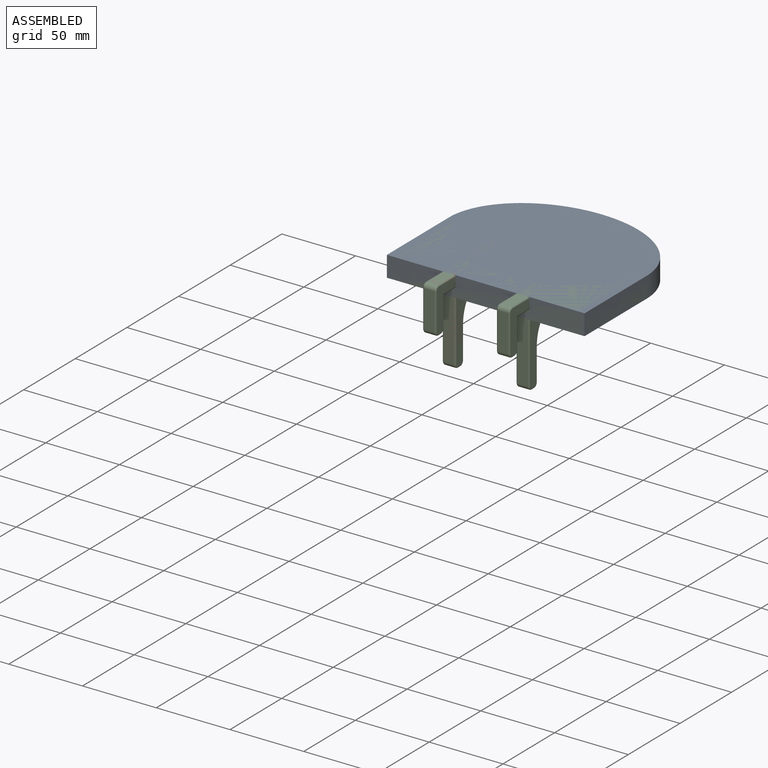
[diagram: assembled view]
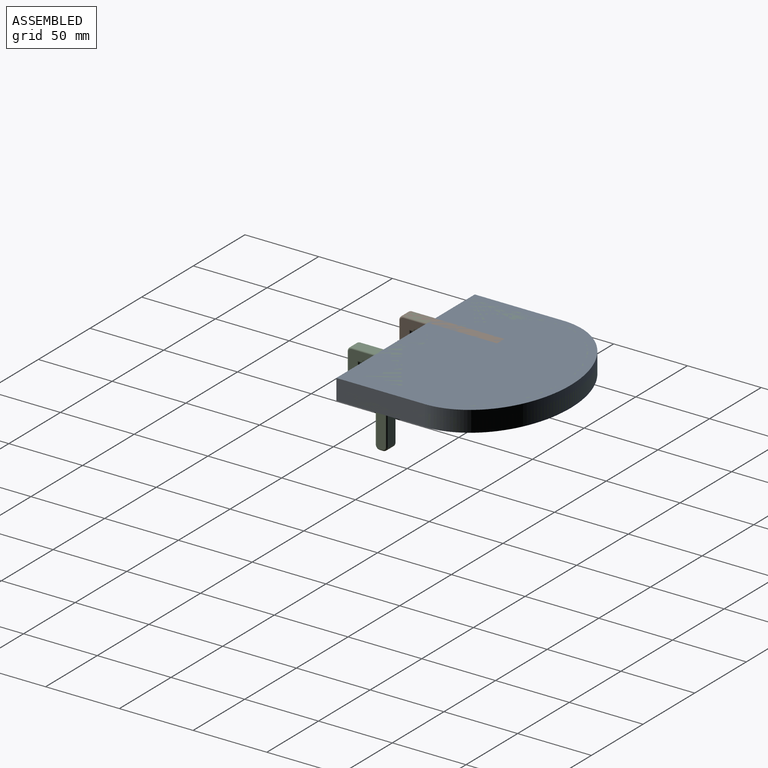
[diagram: assembled view, second angle]
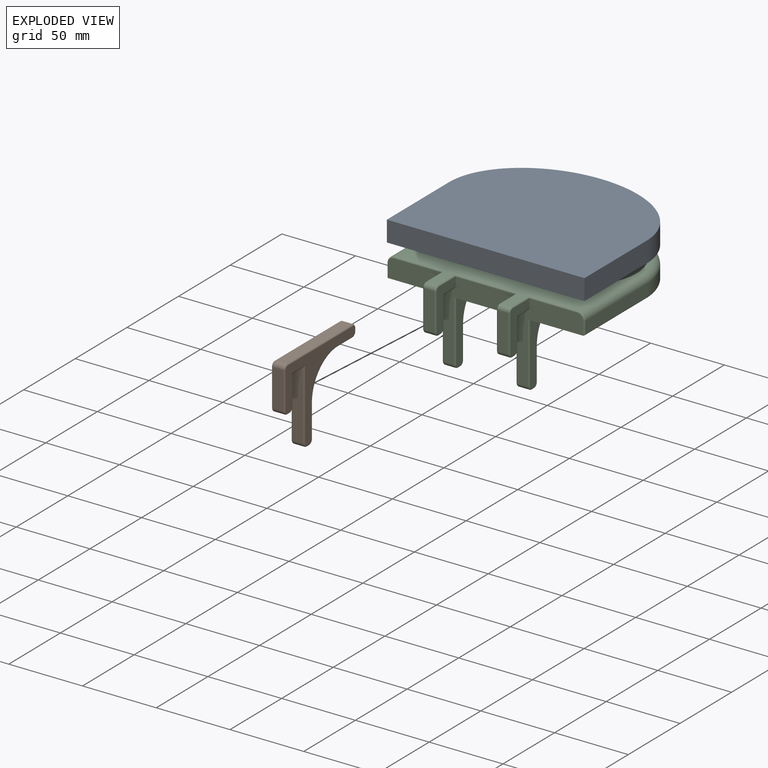
[diagram: exploded view]
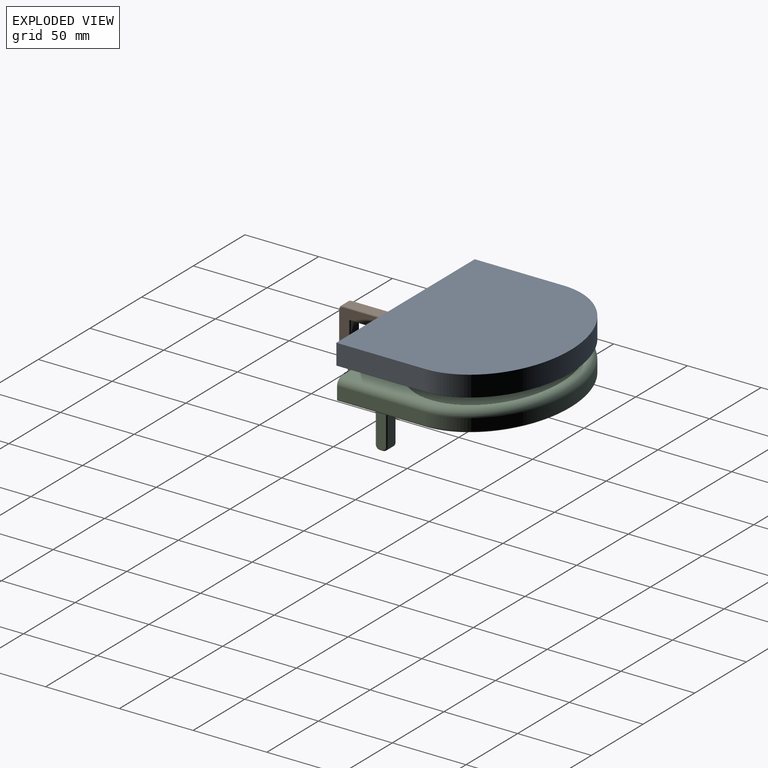
[diagram: exploded view, second angle]
FCSTD DOCUMENT  (FreeCAD 1.0R38806 (Git))
Label: PopBracket
License: All rights reserved
LicenseURL: http://en.wikipedia.org/wiki/All_rights_reserved
objects: Sketcher::SketchObject×4, PartDesign::Fillet×3, PartDesign::Body×3, PartDesign::Pad×2, PartDesign::Pocket×2, App::Link×1, App::LinkGroup×1, Part::MultiFuse×1, PartDesign::FeatureBase×1, App::Part×1, Spreadsheet::Sheet×1
note: 35 computed .brp shape members not serialized (recipe doc carries the construction recipe); baked Part::Feature solids carry a one-line shape summary decoded from their .brp

FEATURE [Sketcher::SketchObject] Sketch  label="HookSketch"
  ArcFitTolerance = 0
  AttachmentSupport = -> [YZ_Plane001]
  FullyConstrained = true
  MakeInternals = false
  MapMode = 5
  Placement = pos=(0,0,0) rot=(0.57735,0.57735,0.57735;2.0944rad)
  sketch-geometry (28):
    g0: LineSegment StartX=3 StartY=0 StartZ=0 EndX=66 EndY=0 EndZ=0
    g1: LineSegment StartX=69 StartY=-3 StartZ=0 EndX=69 EndY=-5 EndZ=0
    g2: LineSegment StartX=66 StartY=-8 StartZ=0 EndX=52 EndY=-8 EndZ=0
    g3: LineSegment StartX=27 StartY=-33 StartZ=0 EndX=27 EndY=-55 EndZ=0
    g4: LineSegment StartX=24 StartY=-58 StartZ=0 EndX=22 EndY=-58 EndZ=0
    g5: LineSegment StartX=19 StartY=-55 StartZ=0 EndX=19 EndY=-8 EndZ=0
    g6: LineSegment StartX=19 StartY=-8 StartZ=0 EndX=8 EndY=-8 EndZ=0
    g7: LineSegment StartX=8 StartY=-8 StartZ=0 EndX=8 EndY=-28 EndZ=0
    g8: LineSegment StartX=5 StartY=-31 StartZ=0 EndX=3 EndY=-31 EndZ=0
    g9: LineSegment StartX=0 StartY=-28 StartZ=0 EndX=0 EndY=-3 EndZ=0
    g10: ArcOfCircle CenterX=3 CenterY=-3 CenterZ=0 NormalX=0 NormalY=0 NormalZ=1 AngleXU=0 Radius=3 StartAngle=1.5708 EndAngle=3.14159
    g11: GeomPoint [constr] X=0 Y=0 Z=0
    g12: ArcOfCircle CenterX=66 CenterY=-3 CenterZ=0 NormalX=0 NormalY=0 NormalZ=1 AngleXU=0 Radius=3 StartAngle=0 EndAngle=1.5708
    g13: GeomPoint [constr] X=69 Y=0 Z=0
    g14: ArcOfCircle CenterX=66 CenterY=-5 CenterZ=0 NormalX=0 NormalY=0 NormalZ=1 AngleXU=0 Radius=3 StartAngle=4.71239 EndAngle=6.28319
    g15: GeomPoint [constr] X=69 Y=-8 Z=0
    g16: ArcOfCircle CenterX=52 CenterY=-33 CenterZ=0 NormalX=0 NormalY=0 NormalZ=1 AngleXU=0 Radius=25 StartAngle=1.5708 EndAngle=3.14159
    g17: GeomPoint [constr] X=27 Y=-8 Z=0
    g18: ArcOfCircle CenterX=24 CenterY=-55 CenterZ=0 NormalX=0 NormalY=0 NormalZ=1 AngleXU=0 Radius=3 StartAngle=4.71239 EndAngle=6.28319
    g19: GeomPoint [constr] X=27 Y=-58 Z=0
    g20: ArcOfCircle CenterX=22 CenterY=-55 CenterZ=0 NormalX=0 NormalY=0 NormalZ=1 AngleXU=0 Radius=3 StartAngle=3.14159 EndAngle=4.71239
    g21: GeomPoint [constr] X=19 Y=-58 Z=0
    g22: GeomPoint [constr] X=19 Y=-8 Z=0
    g23: GeomPoint [constr] X=8 Y=-8 Z=0
    g24: ArcOfCircle CenterX=5 CenterY=-28 CenterZ=0 NormalX=0 NormalY=0 NormalZ=1 AngleXU=0 Radius=3 StartAngle=4.71239 EndAngle=6.28319
    g25: GeomPoint [constr] X=8 Y=-31 Z=0
    g26: ArcOfCircle CenterX=3 CenterY=-28 CenterZ=0 NormalX=0 NormalY=0 NormalZ=1 AngleXU=0 Radius=3 StartAngle=3.14159 EndAngle=4.71239
    g27: GeomPoint [constr] X=0 Y=-31 Z=0
  constraints (64):
    c: Coincident(g-1,g11)
    c: PointOnObject(g13,g-1)
    c: Vertical(g1)
    c: Horizontal(g2)
    c: Vertical(g3)
    c: Horizontal(g4)
    c: Vertical(g5)
    c: Horizontal(g6)
    c: Vertical(g7)
    c: PointOnObject(g27,g-2)
    c: Horizontal(g8)
    c: DistanceX(g21,g19) = 8
    c: DistanceX(g27,g25) = 8
    c: DistanceY(g19,g17) = 50
    c: DistanceY(g25,g23) = 23
    c: DistanceY(g15,g13) = 8
    c: DistanceY(g27,g11) = 31
    c: PointOnObject(g11,g9)
    c: PointOnObject(g11,g0)
    c: Tangent(g9,g10) = 1.5708
    c: Tangent(g0,g10) = 1.5708
    c: PointOnObject(g13,g0)
    c: PointOnObject(g13,g1)
    c: Tangent(g0,g12) = 1.5708
    c: Tangent(g1,g12) = 1.5708
    c: PointOnObject(g15,g1)
    c: PointOnObject(g15,g2)
    c: Tangent(g1,g14) = 1.5708
    c: Tangent(g2,g14) = 1.5708
    c: PointOnObject(g17,g2)
    c: PointOnObject(g17,g3)
    c: Tangent(g2,g16) = -1.5708
    c: Tangent(g3,g16) = -1.5708
    c: PointOnObject(g19,g3)
    c: PointOnObject(g19,g4)
    c: Tangent(g3,g18) = 1.5708
    c: Tangent(g4,g18) = 1.5708
    c: PointOnObject(g21,g4)
    c: PointOnObject(g21,g5)
    c: Tangent(g4,g20) = 1.5708
    c: Tangent(g5,g20) = 1.5708
    c: PointOnObject(g22,g5)
    c: PointOnObject(g22,g6)
    c: PointOnObject(g25,g7)
    c: PointOnObject(g25,g8)
    c: Tangent(g7,g24) = 1.5708
    c: Tangent(g8,g24) = 1.5708
    c: PointOnObject(g27,g8)
    c: PointOnObject(g27,g9)
    c: Tangent(g8,g26) = 1.5708
    c: Tangent(g9,g26) = 1.5708
    c: Equal(g10,g12)
    c: Equal(g10,g14)
    c: Equal(g10,g18)
    c: Equal(g10,g20)
    c: Equal(g10,g24)
    c: Equal(g10,g26)
    c: Radius(g10) = 3
    c: Radius(g16) = 25
    c: DistanceX(g6,g6) = 11
    c: Coincident(g7,g23)
    c: Coincident(g5,g6)
    c: Coincident(g7,g6)
    c: DistanceX(g5,g1) = 50
FEATURE [PartDesign::Pad] Pad  label="HookPad"
  Direction = (1,0,0)
  Length = 9
  Length2 = 10
  Midplane = true
  Placement = pos=(0,0,0) rot=(1,1,1;2.0944rad)
  Profile = -> Sketch
  ReferenceAxis = -> Sketch [N_Axis]
  Suppressed = false
  Type = 0
FEATURE [PartDesign::Fillet] Fillet  label="HookBodyFillet"
  Base = -> Pad [Face20,Face19]
  BaseFeature = -> Pad
  Placement = pos=(0,0,0) rot=(1,1,1;2.0944rad)
  Radius = 1
  SupportTransform = false
  Suppressed = false
  UseAllEdges = false
FEATURE [PartDesign::Body] Body  label="HookBody"
  AllowCompound = false
  Group = -> [Sketch,Pad,Fillet]
  Origin = -> Origin001
  Placement = pos=(-25,0,0) rot=(0,0,1;0rad)
  Tip = -> Fillet
FEATURE [Sketcher::SketchObject] Sketch001  label="PlateauBodySketch"
  ArcFitTolerance = 0
  AttachmentSupport = -> [XY_Plane002]
  FullyConstrained = true
  MakeInternals = false
  MapMode = 5
  expr: Constraints[23] = <<Spreadsheet>>.depth
  expr: Constraints[24] = <<Spreadsheet>>.width
  expr: Constraints[5] = <<Spreadsheet>>.depth / 2 + 15
  expr: Constraints[8] = <<Spreadsheet>>.width + 14
  sketch-geometry (17):
    g0: LineSegment StartX=-67 StartY=79 StartZ=0 EndX=-67 EndY=19 EndZ=0
    g1: LineSegment StartX=-67 StartY=19 StartZ=0 EndX=67 EndY=19 EndZ=0
    g2: LineSegment StartX=67 StartY=19 StartZ=0 EndX=67 EndY=79 EndZ=0
    g3: LineSegment [constr] StartX=-67 StartY=19 StartZ=0 EndX=0 EndY=0 EndZ=0
    g4: LineSegment [constr] StartX=0 StartY=0 StartZ=0 EndX=67 EndY=19 EndZ=0
    g5: LineSegment [constr] StartX=-67 StartY=79 StartZ=0 EndX=67 EndY=79 EndZ=0
    g6: GeomPoint [constr] X=0 Y=79 Z=0
    g7: Ellipse [constr] CenterX=0 CenterY=79 CenterZ=0 NormalX=0 NormalY=0 NormalZ=1 MajorRadius=60 MinorRadius=45 AngleXU=0
    g8: LineSegment [constr] StartX=60 StartY=79 StartZ=0 EndX=-60 EndY=79 EndZ=0
    g9: LineSegment [constr] StartX=0 StartY=124 StartZ=0 EndX=0 EndY=34 EndZ=0
    g10: GeomPoint [constr] X=39.6863 Y=79 Z=0
    g11: GeomPoint [constr] X=-39.6863 Y=79 Z=0
    g12: ArcOfEllipse CenterX=0 CenterY=79 CenterZ=0 NormalX=0 NormalY=0 NormalZ=1 MajorRadius=67 MinorRadius=52 AngleXU=-3.14159 StartAngle=3.14159 EndAngle=6.28319
    g13: LineSegment [constr] StartX=-67 StartY=79 StartZ=0 EndX=67 EndY=79 EndZ=0
    g14: LineSegment [constr] StartX=0 StartY=27 StartZ=0 EndX=0 EndY=131 EndZ=0
    g15: GeomPoint [constr] X=-42.2493 Y=79 Z=0
    g16: GeomPoint [constr] X=42.2493 Y=79 Z=0
  constraints (29):
    c: Coincident(g0,g1)
    c: Horizontal(g1)
    c: Coincident(g1,g2)
    c: Vertical(g2)
    c: DistanceY(g-1,g0) = 19
    c: DistanceY(g0,g0) = 60
    c: Vertical(g0)
    c: Equal(g0,g2)
    c: DistanceX(g1,g1) = 134
    c: Coincident(g3,g0)
    c: Coincident(g3,g-1)
    c: Coincident(g4,g3)
    c: Coincident(g4,g1)
    c: Equal(g3,g4)
    c: Coincident(g5,g0)
    c: Coincident(g5,g2)
    c: PointOnObject(g6,g-2)
    c: PointOnObject(g6,g5)
    c: InternalAlignment(g8-g11 -> g7) x4
    c: Coincident(g7,g6)
    c: DistanceY(g9,g9) = 90
    c: DistanceX(g8,g8) = 120
    c: Horizontal(g8)
    c: InternalAlignment(g13-g16 -> g12) x4
    c: Coincident(g12,g6)
    c: Coincident(g13,g0)
    c: DistanceY(g9,g14) = 7
    c: PointOnObject(g12,g5)
    c: PointOnObject(g12,g5)
FEATURE [App::Link] Link  label="HookBody001"
  LinkTransform = true
  LinkedObject = -> Body
FEATURE [App::LinkGroup] LinkGroup
  ElementList = -> [Link]
  LinkMode = 1
  Placement = pos=(50,0,0) rot=(0,0,1;0rad)
FEATURE [PartDesign::Pad] Pad001  label="PlateauPad"
  Direction = (0,0,1)
  Length = 14
  Length2 = 10
  Profile = -> Sketch001
  ReferenceAxis = -> Sketch001 [N_Axis]
  Reversed = true
  Suppressed = false
  Type = 0
FEATURE [PartDesign::Body] Body001  label="PlateauBody"
  AllowCompound = false
  Group = -> [Sketch001,Pad001]
  Origin = -> Origin002
  Tip = -> Pad001
FEATURE [Part::MultiFuse] Fusion
  Refine = true
  Shapes = -> [Body,Body001,LinkGroup]
FEATURE [PartDesign::FeatureBase] BaseFeature
  BaseFeature = -> Fusion
  Suppressed = false
FEATURE [Sketcher::SketchObject] Sketch002  label="HoleSketch"
  ArcFitTolerance = 0
  AttachmentSupport = -> [BaseFeature]
  ExternalGeometry = -> [BaseFeature]
  FullyConstrained = true
  MakeInternals = false
  MapMode = 2
  expr: Constraints[5] = <<Spreadsheet>>.width
  expr: Constraints[7] = <<Spreadsheet>>.depth
  sketch-geometry (5):
    g0: Ellipse CenterX=0 CenterY=79 CenterZ=0 NormalX=0 NormalY=0 NormalZ=1 MajorRadius=60 MinorRadius=45 AngleXU=-3.14159
    g1: LineSegment [constr] StartX=-60 StartY=79 StartZ=0 EndX=60 EndY=79 EndZ=0
    g2: LineSegment [constr] StartX=-2e-16 StartY=34 StartZ=0 EndX=2e-16 EndY=124 EndZ=0
    g3: GeomPoint [constr] X=-39.6863 Y=79 Z=0
    g4: GeomPoint [constr] X=39.6863 Y=79 Z=0
  constraints (6):
    c: PointOnObject(g0,g-2)
    c: InternalAlignment(g1-g4 -> g0) x4
    c: DistanceX(g1,g1) = 120
    c: Horizontal(g1)
    c: DistanceY(g2,g2) = 90
    c: Horizontal(g0,g-3)
FEATURE [PartDesign::Pocket] Pocket  label="ActionFigureBasePocket"
  BaseFeature = -> BaseFeature
  Direction = (0,0,-1)
  Length = 9.6
  Length2 = 5
  Profile = -> Sketch002
  ReferenceAxis = -> Sketch002 [N_Axis]
  Suppressed = false
  Type = 0
FEATURE [Sketcher::SketchObject] Sketch003  label="EasyRemovalHole"
  ArcFitTolerance = 0
  AttachmentSupport = -> [Pocket]
  ExternalGeometry = -> [Sketch002]
  FullyConstrained = true
  MakeInternals = false
  MapMode = 5
  Placement = pos=(0,0,-9.6) rot=(0,0,1;0rad)
  sketch-geometry (1):
    g0: Circle CenterX=0 CenterY=79 CenterZ=0 NormalX=0 NormalY=0 NormalZ=1 AngleXU=0 Radius=10
  constraints (2):
    c: Diameter(g0) = 20
    c: Coincident(g0,g-3)
FEATURE [PartDesign::Pocket] Pocket001  label="RemovalHolePocket"
  BaseFeature = -> Pocket
  Direction = (0,0,-1)
  Length = 5
  Length2 = 5
  Profile = -> Sketch003
  ReferenceAxis = -> Sketch003 [N_Axis]
  Suppressed = false
  Type = 1
FEATURE [PartDesign::Fillet] Fillet001
  Base = -> Pocket001 [Edge43]
  BaseFeature = -> Pocket001
  Radius = 5
  SupportTransform = false
  Suppressed = false
  UseAllEdges = false
FEATURE [PartDesign::Fillet] Fillet002
  Base = -> Fillet001 [Edge13,Edge1,Edge8,Edge9,Edge72]
  BaseFeature = -> Fillet001
  Radius = 1
  SupportTransform = false
  Suppressed = false
  UseAllEdges = false
FEATURE [PartDesign::Body] Body002  label="Body"
  AllowCompound = false
  BaseFeature = -> Fusion
  Group = -> [BaseFeature,Sketch002,Sketch003,Pocket,Pocket001,Fillet001,Fillet002]
  Origin = -> Origin003
  Tip = -> Fillet002
FEATURE [App::Part] Part  label="ActionFigureStandPart"
  Group = -> [Body002]
  Origin = -> Origin
FEATURE [Spreadsheet::Sheet] Spreadsheet
  Config = 2
  cells = B1='Width; C1='Depth; A2==hiddenref(.Config.String); B2(width)==.B5; C2(depth)==.C5; A3='Brook; B3=120; C3=90; A4='TwoB; B4=150; C4=150; A5='Usopp; B5=120; C5=90
  expr: .Config.Enum = cells[<<A3:|>>]
  expr: .cells.Bind.B2.ZZ2 = tuple(.cells; <<B>> + str(hiddenref(Config) + 3); <<ZZ>> + str(hiddenref(Config) + 3))
